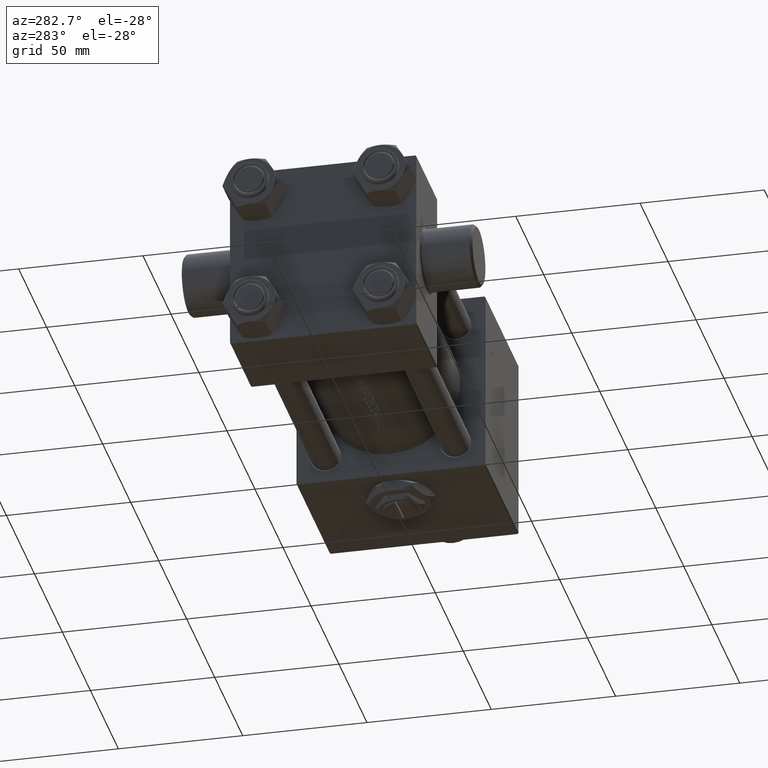
[diagram: clean part render]
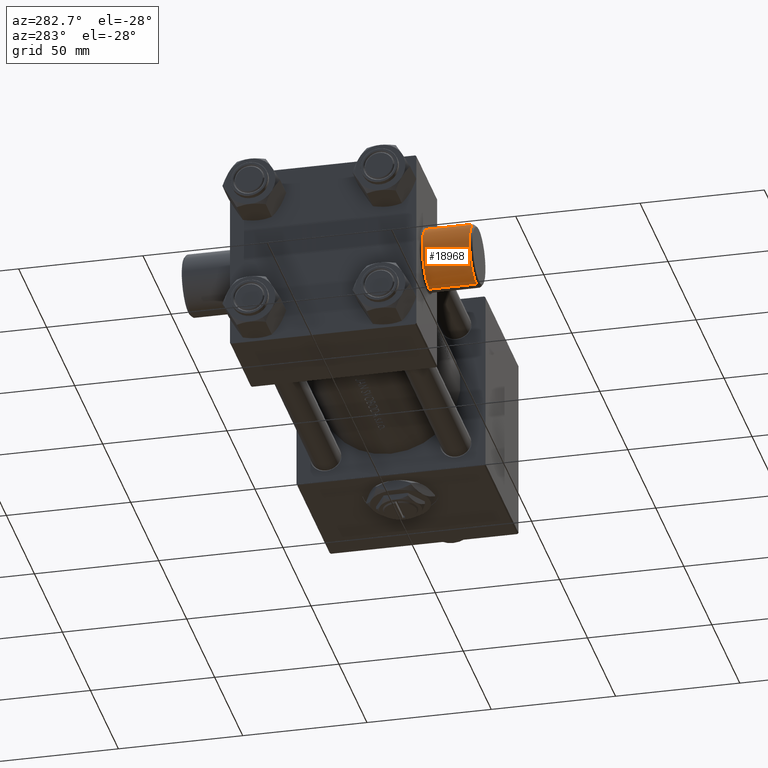
[diagram: same view with one face highlighted and labeled with its STEP entity id]
A machine part, auxiliary view. The second image highlights one B-rep face of the part: STEP entity #18968.
In plain terms, the highlighted cylindrical surface (edge-blend (fillet) strip) has radius 12.5 mm, axis along (0, 1, 0).
Its self-contained STEP definition (entity closure, byte-faithful):
#331 = DIRECTION ( 'NONE',  ( -0.000000000000000000, 1.000000000000000000, 8.673617379884036705E-17 ) ) ;
#509 = DIRECTION ( 'NONE',  ( 0.000000000000000000, -1.000000000000000000, -9.251858538542971581E-17 ) ) ;
#524 = CIRCLE ( 'NONE', #24242, 12.50000000000000000 ) ;
#693 = VECTOR ( 'NONE', #7991, 1000.000000000000000 ) ;
#826 = VECTOR ( 'NONE', #331, 1000.000000000000000 ) ;
#4056 = VERTEX_POINT ( 'NONE', #4480 ) ;
#4249 = VERTEX_POINT ( 'NONE', #26215 ) ;
#4295 = LINE ( 'NONE', #26817, #826 ) ;
#4480 = CARTESIAN_POINT ( 'NONE',  ( 18.50000000000000000, -57.50000000000000000, 12.49999999999999467 ) ) ;
#4717 = DIRECTION ( 'NONE',  ( 0.000000000000000000, 0.000000000000000000, 1.000000000000000000 ) ) ;
#4775 = CARTESIAN_POINT ( 'NONE',  ( 18.50000000000000000, -57.50000000000000000, -5.204170427930421283E-15 ) ) ;
#7991 = DIRECTION ( 'NONE',  ( -0.000000000000000000, 1.000000000000000000, 8.673617379884036705E-17 ) ) ;
#9201 = EDGE_CURVE ( 'NONE', #4249, #4056, #42421, .T. ) ;
#10188 = EDGE_CURVE ( 'NONE', #26357, #33015, #524, .T. ) ;
#10246 = DIRECTION ( 'NONE',  ( -0.000000000000000000, 1.000000000000000000, 8.673617379884036705E-17 ) ) ;
#10971 = ORIENTED_EDGE ( 'NONE', *, *, #10188, .T. ) ;
#11333 = CARTESIAN_POINT ( 'NONE',  ( 18.50000000000000000, -38.50000000000000711, 12.49999999999999645 ) ) ;
#12715 = ORIENTED_EDGE ( 'NONE', *, *, #42267, .T. ) ;
#13494 = CYLINDRICAL_SURFACE ( 'NONE', #22835, 12.50000000000000000 ) ;
#15195 = LINE ( 'NONE', #30535, #693 ) ;
#15201 = ORIENTED_EDGE ( 'NONE', *, *, #19035, .F. ) ;
#18968 = ADVANCED_FACE ( 'NONE', ( #43695 ), #13494, .T. ) ;
#19035 = EDGE_CURVE ( 'NONE', #4249, #33015, #15195, .T. ) ;
#22835 = AXIS2_PLACEMENT_3D ( 'NONE', #47913, #10246, #36974 ) ;
#24242 = AXIS2_PLACEMENT_3D ( 'NONE', #34419, #509, #4717 ) ;
#26215 = CARTESIAN_POINT ( 'NONE',  ( 18.50000000000000000, -57.50000000000000000, -12.50000000000000711 ) ) ;
#26357 = VERTEX_POINT ( 'NONE', #11333 ) ;
#26645 = ORIENTED_EDGE ( 'NONE', *, *, #9201, .T. ) ;
#26806 = DIRECTION ( 'NONE',  ( 0.000000000000000000, 1.000000000000000000, 8.673617379884090939E-17 ) ) ;
#26817 = CARTESIAN_POINT ( 'NONE',  ( 18.50000000000000000, -38.50000000000000711, 12.49999999999999645 ) ) ;
#30533 = AXIS2_PLACEMENT_3D ( 'NONE', #4775, #26806, #34959 ) ;
#30535 = CARTESIAN_POINT ( 'NONE',  ( 18.50000000000000000, -38.50000000000000711, -12.50000000000000355 ) ) ;
#33015 = VERTEX_POINT ( 'NONE', #41253 ) ;
#34419 = CARTESIAN_POINT ( 'NONE',  ( 18.50000000000000000, -38.50000000000000711, -3.556183125752455332E-15 ) ) ;
#34959 = DIRECTION ( 'NONE',  ( 0.000000000000000000, 0.000000000000000000, -1.000000000000000000 ) ) ;
#35055 = EDGE_LOOP ( 'NONE', ( #15201, #26645, #12715, #10971 ) ) ;
#36974 = DIRECTION ( 'NONE',  ( 0.000000000000000000, 0.000000000000000000, 1.000000000000000000 ) ) ;
#41253 = CARTESIAN_POINT ( 'NONE',  ( 18.50000000000000000, -38.50000000000000711, -12.50000000000000355 ) ) ;
#42267 = EDGE_CURVE ( 'NONE', #4056, #26357, #4295, .T. ) ;
#42421 = CIRCLE ( 'NONE', #30533, 12.50000000000000000 ) ;
#43695 = FACE_OUTER_BOUND ( 'NONE', #35055, .T. ) ;
#47913 = CARTESIAN_POINT ( 'NONE',  ( 18.50000000000000000, -38.50000000000000711, -3.556183125752455332E-15 ) ) ;